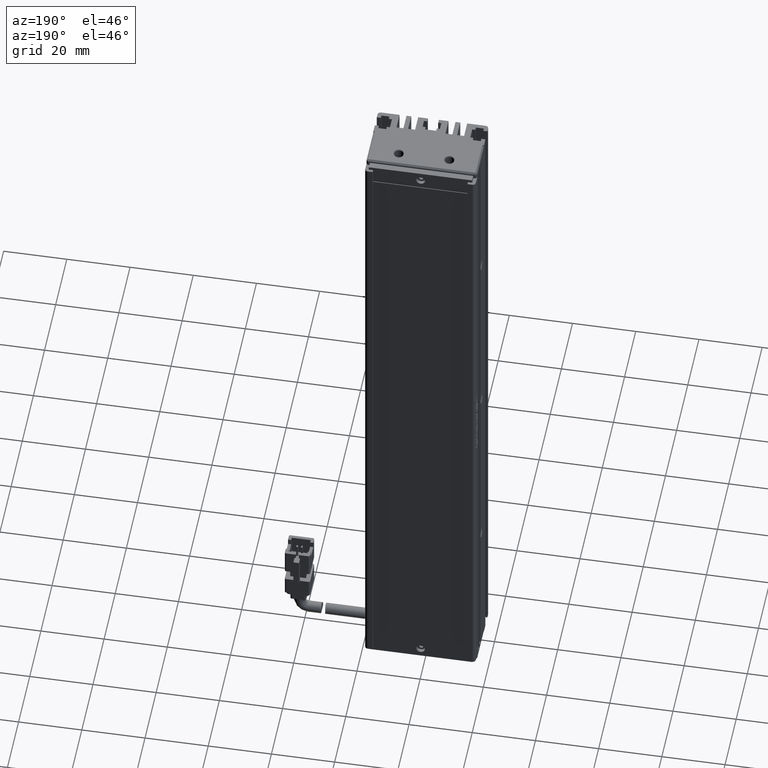
[diagram: clean part render]
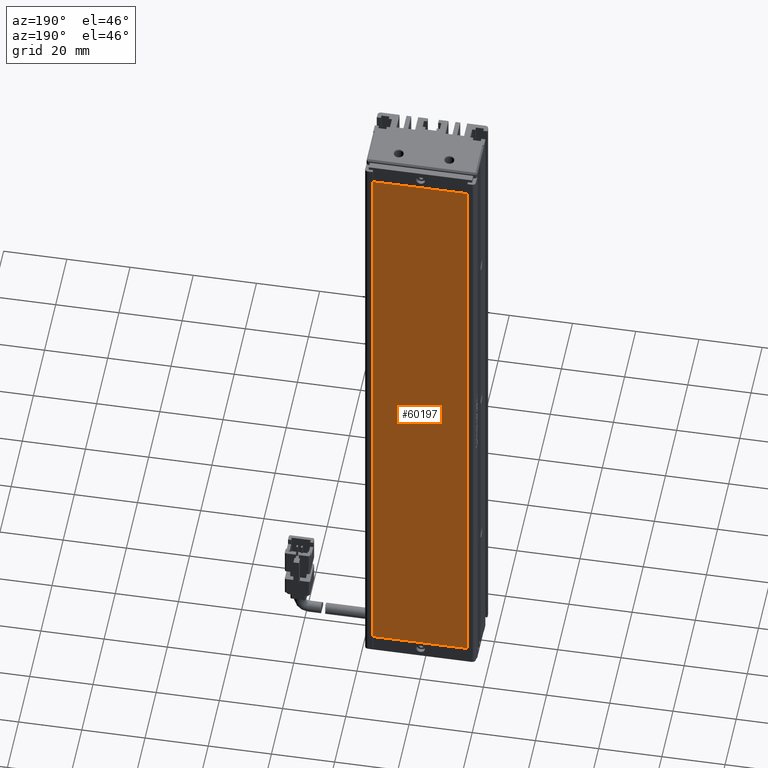
[diagram: same view with one face highlighted and labeled with its STEP entity id]
A machine part, auxiliary view. The second image highlights one B-rep face of the part: STEP entity #60197.
In plain terms, the highlighted planar face has unit normal (0, 1, 0).
Its self-contained STEP definition (entity closure, byte-faithful):
#98 = CARTESIAN_POINT ( 'NONE',  ( 25.96295586274039000, 34.29073232304837400, -217.0000000000000000 ) ) ;
#3763 = VERTEX_POINT ( 'NONE', #22676 ) ;
#4452 = PLANE ( 'NONE',  #22793 ) ;
#6007 = DIRECTION ( 'NONE',  ( 0.0000000000000000000, 0.0000000000000000000, -1.000000000000000000 ) ) ;
#6441 = EDGE_CURVE ( 'NONE', #71215, #38878, #28449, .T. ) ;
#9778 = VECTOR ( 'NONE', #6007, 1000.000000000000000 ) ;
#10951 = EDGE_CURVE ( 'NONE', #3763, #12105, #69751, .T. ) ;
#12105 = VERTEX_POINT ( 'NONE', #44649 ) ;
#12605 = ORIENTED_EDGE ( 'NONE', *, *, #25548, .T. ) ;
#15166 = VECTOR ( 'NONE', #20389, 1000.000000000000000 ) ;
#19531 = CARTESIAN_POINT ( 'NONE',  ( 55.92537974683542500, 34.29073232304837400, -217.0000000000000000 ) ) ;
#20389 = DIRECTION ( 'NONE',  ( 0.0000000000000000000, 0.0000000000000000000, 1.000000000000000000 ) ) ;
#20505 = DIRECTION ( 'NONE',  ( 1.000000000000000000, 0.0000000000000000000, 0.0000000000000000000 ) ) ;
#22676 = CARTESIAN_POINT ( 'NONE',  ( 25.96295586274041500, 34.29073232304837400, -13.00000000000001100 ) ) ;
#22793 = AXIS2_PLACEMENT_3D ( 'NONE', #81526, #32038, #39651 ) ;
#25548 = EDGE_CURVE ( 'NONE', #36959, #3763, #75400, .T. ) ;
#28449 = LINE ( 'NONE', #40908, #9778 ) ;
#31302 = DIRECTION ( 'NONE',  ( -1.000000000000000000, 0.0000000000000000000, 0.0000000000000000000 ) ) ;
#32038 = DIRECTION ( 'NONE',  ( 0.0000000000000000000, 1.000000000000000000, 0.0000000000000000000 ) ) ;
#33303 = CARTESIAN_POINT ( 'NONE',  ( 25.96295586274039000, 34.29073232304837400, -217.0000000000000000 ) ) ;
#34897 = LINE ( 'NONE', #88474, #37050 ) ;
#36959 = VERTEX_POINT ( 'NONE', #33303 ) ;
#37050 = VECTOR ( 'NONE', #60943, 1000.000000000000100 ) ;
#38878 = VERTEX_POINT ( 'NONE', #19531 ) ;
#39651 = DIRECTION ( 'NONE',  ( 0.0000000000000000000, -0.0000000000000000000, 1.000000000000000000 ) ) ;
#40908 = CARTESIAN_POINT ( 'NONE',  ( 55.92537974683542500, 34.29073232304837400, -115.0000000000000000 ) ) ;
#44649 = CARTESIAN_POINT ( 'NONE',  ( 55.96295586274041500, 34.29073232304837400, -13.00000000000001100 ) ) ;
#46891 = LINE ( 'NONE', #60547, #88434 ) ;
#47335 = ORIENTED_EDGE ( 'NONE', *, *, #54903, .T. ) ;
#54903 = EDGE_CURVE ( 'NONE', #12105, #71215, #34897, .T. ) ;
#60197 = ADVANCED_FACE ( 'NONE', ( #81712 ), #4452, .T. ) ;
#60547 = CARTESIAN_POINT ( 'NONE',  ( 55.92537974683542500, 34.29073232304837400, -217.0000000000000000 ) ) ;
#60943 = DIRECTION ( 'NONE',  ( -0.0003683932681881996800, 0.0000000000000000000, -0.9999999321431976000 ) ) ;
#62312 = CARTESIAN_POINT ( 'NONE',  ( 25.96295586274041500, 34.29073232304837400, -13.00000000000001100 ) ) ;
#66756 = ORIENTED_EDGE ( 'NONE', *, *, #6441, .T. ) ;
#69085 = EDGE_LOOP ( 'NONE', ( #47335, #66756, #88210, #12605, #69308 ) ) ;
#69308 = ORIENTED_EDGE ( 'NONE', *, *, #10951, .T. ) ;
#69751 = LINE ( 'NONE', #62312, #76286 ) ;
#71215 = VERTEX_POINT ( 'NONE', #85289 ) ;
#75400 = LINE ( 'NONE', #98, #15166 ) ;
#76286 = VECTOR ( 'NONE', #20505, 1000.000000000000000 ) ;
#81526 = CARTESIAN_POINT ( 'NONE',  ( 0.0000000000000000000, 34.29073232304837400, 0.0000000000000000000 ) ) ;
#81712 = FACE_OUTER_BOUND ( 'NONE', #69085, .T. ) ;
#85289 = CARTESIAN_POINT ( 'NONE',  ( 55.92537974683542500, 34.29073232304837400, -115.0000000000000000 ) ) ;
#86854 = EDGE_CURVE ( 'NONE', #38878, #36959, #46891, .T. ) ;
#88210 = ORIENTED_EDGE ( 'NONE', *, *, #86854, .T. ) ;
#88434 = VECTOR ( 'NONE', #31302, 1000.000000000000000 ) ;
#88474 = CARTESIAN_POINT ( 'NONE',  ( 55.96295586274041500, 34.29073232304837400, -13.00000000000001100 ) ) ;